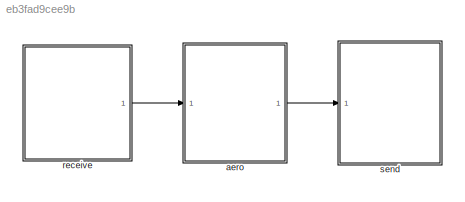
MODEL slx_eb3fad9cee9b
KIND model
CONFIG AbsTol = auto
CONFIG FixedStep = 0.01
CONFIG MaxStep = auto
CONFIG MinStep = auto
CONFIG RelTol = 1e-3
CONFIG SampleTimeConstraint = Unconstrained
CONFIG Solver = ode4
CONFIG SolverMode = Auto
CONFIG SolverName = ode4
CONFIG StartTime = 0.0
CONFIG StopTime = inf
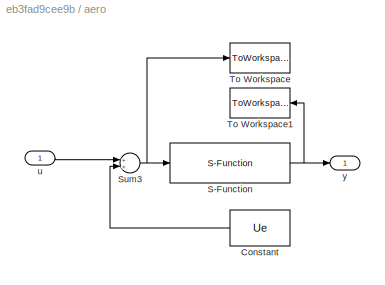
BLOCK [SubSystem] aero
  Ports = [1, 1]
  RequestExecContextInheritance = off
  Variant = off
BLOCK [Constant] aero/Constant
  Value = Ue
BLOCK [S-Function] aero/S-Function
  EnableBusSupport = off
  FunctionName = sfunction_piper
  Parameters = par_gen,par_aero,par_prop, Xe
  Ports = [1, 1]
  SFunctionDeploymentMode = off
BLOCK [Sum] aero/Sum3
  InputSameDT = off
  OutDataTypeStr = Inherit: Inherit via internal rule
  Ports = [2, 1]
  SaturateOnIntegerOverflow = off
BLOCK [ToWorkspace] aero/To Workspace
  MaxDataPoints = inf
  Ports = [1]
  SampleTime = -1
  SaveFormat = Timeseries
  VariableName = embU
BLOCK [ToWorkspace] aero/To Workspace1
  MaxDataPoints = inf
  Ports = [1]
  SampleTime = -1
  SaveFormat = Timeseries
  VariableName = embY
BLOCK [Inport] aero/u
  IconDisplay = Port number
BLOCK [Outport] aero/y
  IconDisplay = Port number
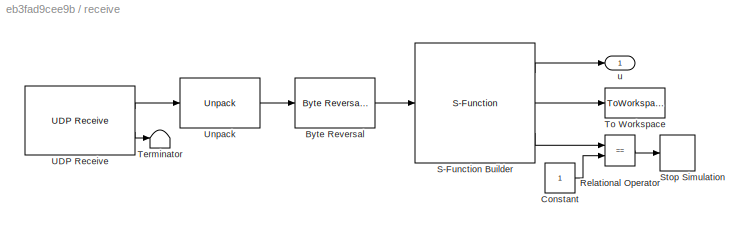
BLOCK [SubSystem] receive
  Ports = [0, 1]
  RequestExecContextInheritance = off
  Variant = off
BLOCK [Reference] receive/Byte Reversal  REF=xpcutilitieslib/Byte Reversal 
  Ports = [1, 1]
  SourceBlock = xpcutilitieslib/Byte Reversal
  SourceType = xpcreverseendian
BLOCK [Constant] receive/Constant
BLOCK [RelationalOperator] receive/Relational Operator
  InputSameDT = off
  Operator = ==
  OutDataTypeStr = boolean
  Ports = [2, 1]
BLOCK [S-Function] receive/S-Function Builder
  CopyFcn = set_param(gcbh,'LinkStatus','none')
  EnableBusSupport = off
  FunctionName = dados_uC
  InitFcn = try, set_param(gcb,'FunctionName','dados_uC'), end
  OpenFcn = sfunctionwizard(gcbh)
  Ports = [1, 3]
  PreSaveFcn = try, set_param(gcb,'FunctionName','dados_uC'), end
  SFunctionDeploymentMode = off
  SFunctionModules = dados_uC_wrapper
BLOCK [Stop] receive/Stop Simulation
BLOCK [Terminator] receive/Terminator
BLOCK [ToWorkspace] receive/To Workspace
  MaxDataPoints = inf
  Ports = [1]
  SampleTime = -1
  SaveFormat = Timeseries
  VariableName = ref
BLOCK [Reference] receive/UDP Receive  REF=instrumentlib/UDP Receive
  Ports = [0, 2]
  SourceBlock = instrumentlib/UDP Receive
  SourceType = UDP Receive
BLOCK [Reference] receive/Unpack  REF=xpcobsoletelib/Utilities/Unpack 
  Ports = [1, 1]
  SourceBlock = xpcobsoletelib/Utilities/Unpack
  SourceType = xpcbyte2any
BLOCK [Outport] receive/u
  IconDisplay = Port number
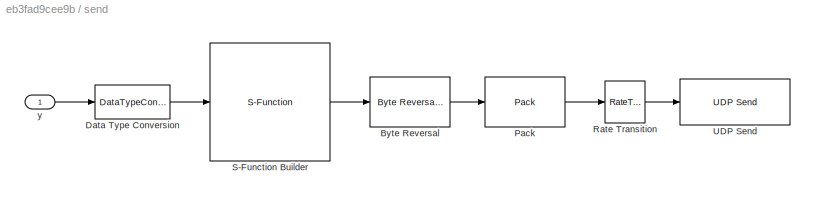
BLOCK [SubSystem] send
  Ports = [1]
  RequestExecContextInheritance = off
  Variant = off
BLOCK [Reference] send/Byte Reversal  REF=xpcutilitieslib/Byte Reversal 
  Ports = [1, 1]
  SourceBlock = xpcutilitieslib/Byte Reversal
  SourceType = xpcreverseendian
BLOCK [DataTypeConversion] send/Data Type Conversion
  OutDataTypeStr = single
  RndMeth = Floor
  SaturateOnIntegerOverflow = off
BLOCK [Reference] send/Pack  REF=xpcobsoletelib/Utilities/Pack 
  Ports = [1, 1]
  SourceBlock = xpcobsoletelib/Utilities/Pack
  SourceType = xpcany2byte
BLOCK [RateTransition] send/Rate Transition
  OutPortSampleTime = 0.01
BLOCK [S-Function] send/S-Function Builder
  CopyFcn = set_param(gcbh,'LinkStatus','none')
  EnableBusSupport = off
  FunctionName = dados_matlab
  InitFcn = try, set_param(gcb,'FunctionName','dados_matlab'), end
  OpenFcn = sfunctionwizard(gcbh)
  Ports = [1, 1]
  PreSaveFcn = try, set_param(gcb,'FunctionName','dados_matlab'), end
  SFunctionDeploymentMode = off
  SFunctionModules = dados_matlab_wrapper crc
BLOCK [Reference] send/UDP Send  REF=instrumentlib/UDP Send
  Ports = [1]
  SourceBlock = instrumentlib/UDP Send
  SourceType = UDP Send
BLOCK [Inport] send/y
  IconDisplay = Port number
LINE aero/Constant:1 -> aero/Sum3:2
NET aero/S-Function:1 -> aero/To Workspace1:1, aero/y:1
NET aero/Sum3:1 -> aero/S-Function:1, aero/To Workspace:1
LINE aero/u:1 -> aero/Sum3:1
LINE aero:1 -> send:1
LINE receive/Byte Reversal:1 -> receive/S-Function Builder:1
LINE receive/Constant:1 -> receive/Relational Operator:2
LINE receive/Relational Operator:1 -> receive/Stop Simulation:1
LINE receive/S-Function Builder:1 -> receive/u:1
LINE receive/S-Function Builder:2 -> receive/To Workspace:1
LINE receive/S-Function Builder:3 -> receive/Relational Operator:1
LINE receive/UDP Receive:1 -> receive/Unpack:1
LINE receive/UDP Receive:2 -> receive/Terminator:1
LINE receive/Unpack:1 -> receive/Byte Reversal:1
LINE receive:1 -> aero:1
LINE send/Byte Reversal:1 -> send/Pack:1
LINE send/Data Type Conversion:1 -> send/S-Function Builder:1
LINE send/Pack:1 -> send/Rate Transition:1
LINE send/Rate Transition:1 -> send/UDP Send:1
LINE send/S-Function Builder:1 -> send/Byte Reversal:1
LINE send/y:1 -> send/Data Type Conversion:1
note: NET lines group one-source signal fan-out (src -> all destinations, sorted); 1:1 wires keep LINE
